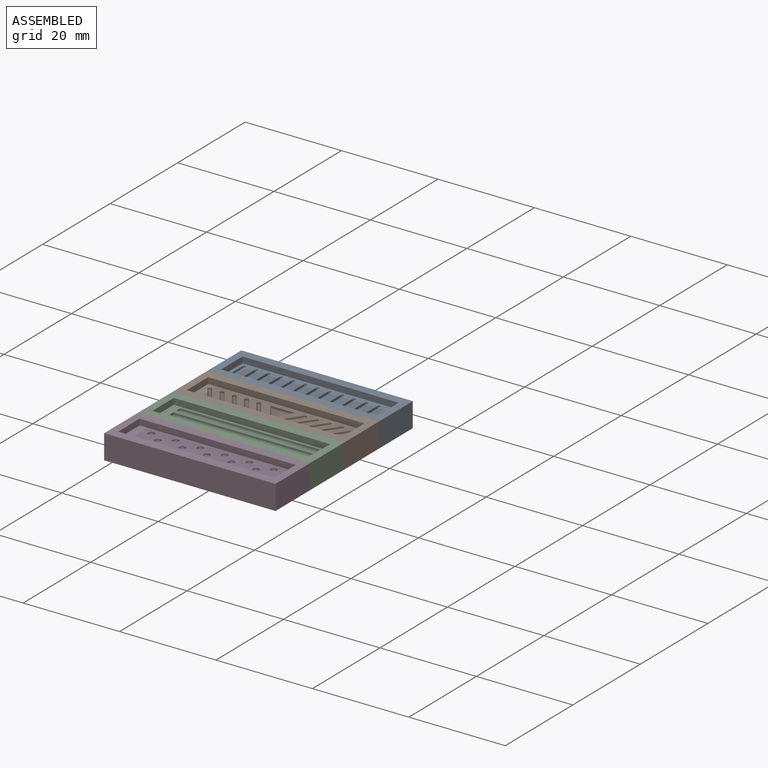
[diagram: assembled view]
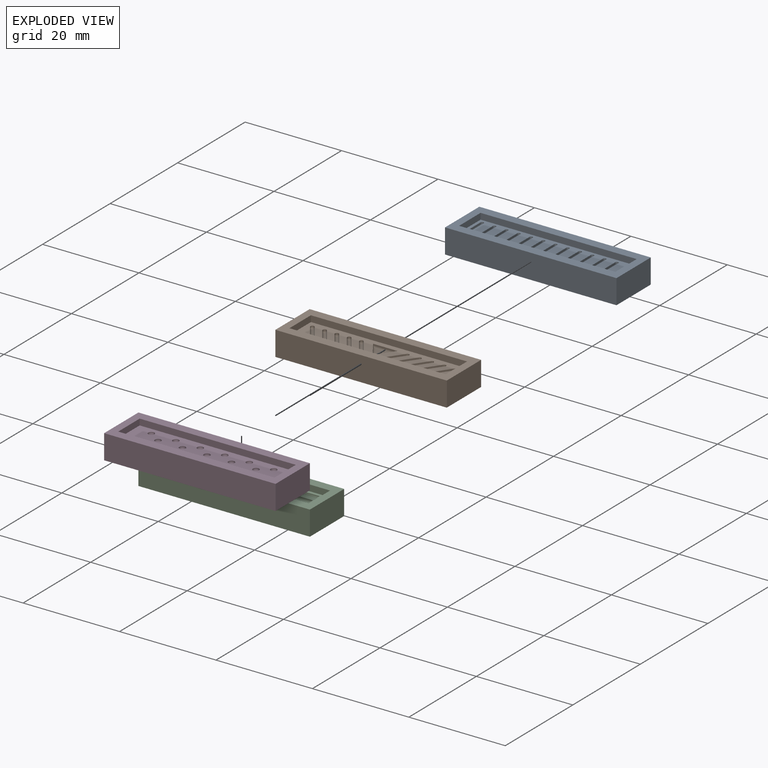
[diagram: exploded view]
GUIDED TOUR — MATED ASSEMBLY (Onshape document 4ad4c3a37b00c5f7597a4498, AutoMate assembly 4ad4c3a37b00c5f7597a4498_572ee04498159e4166e384d1_c1657ed071d5300d2320e906_default)

This assembly has 4 components, labeled P0..P3 below (a component is one placed occurrence of a part; the same part can appear more than once), held together by 9 mates. A mate is a constraint between two components; its type names the relative motion it leaves free:
  PLANAR — leaves sliding in the plane through the listed point (normal = the listed direction) and rotation about that normal free.
Axis/direction vectors are unit vectors and 'through' points are millimeter coordinates, both in the assembly's world frame.

MATES
  1. PLANAR "Planar 5": P2 <-> P1, direction (0.000, 0.000, -1.000) through (-12.15, -6.59, 8.30) mm
  2. PLANAR "Planar 7": P0 <-> P1, direction (0.000, -1.000, 0.000) through (-12.15, 8.65, 10.84) mm
  3. PLANAR "Planar 8": P0 <-> P1, direction (1.000, 0.000, 0.000) through (5.63, 13.73, 10.84) mm
  4. PLANAR "Planar 4": P2 <-> P1, direction (1.000, 0.000, 0.000) through (5.63, -6.59, 10.84) mm
  5. PLANAR "Planar 3": P3 <-> P2, direction (1.000, 0.000, 0.000) through (5.63, -16.75, 10.84) mm
  6. PLANAR "Planar 1": P1 <-> P2, direction (0.000, -1.000, 0.000) through (-12.15, -1.51, 10.84) mm
  7. PLANAR "Planar 6": P2 <-> P3, direction (0.000, 0.000, -1.000) through (-12.15, -6.59, 8.30) mm
  8. PLANAR "Planar 9": P0 <-> P1, direction (0.000, 0.000, -1.000) through (-12.15, 13.73, 8.30) mm
  9. PLANAR "Planar 2": P3 <-> P2, direction (0.000, 1.000, 0.000) through (5.63, -11.67, 13.38) mm

ASSEMBLY ORDER
  1. P3 — the base component [order verified]
  2. P2 [order verified]
  3. P1 [order verified]
  4. P0 [order verified]
Order-tag legend:
  [order verified] — this step's position reverses a verified removal order: the component was checked to insert without passing through the ones already placed.

Of the 4 components, 4 carry the full construction recipe — the FeatureScript program that regenerates the part's solid from scratch; the rest are supplied as boundary geometry only.
Each toured component is shown spotlighted twice — in the assembled view, then in the exploded view, where a leader line traces a displaced component back to its assembled socket (saturated green if recipe-attached, orange if geometry-only; every other component desaturated gray) — followed by its recipe or geometry summary and the mates that hold it.
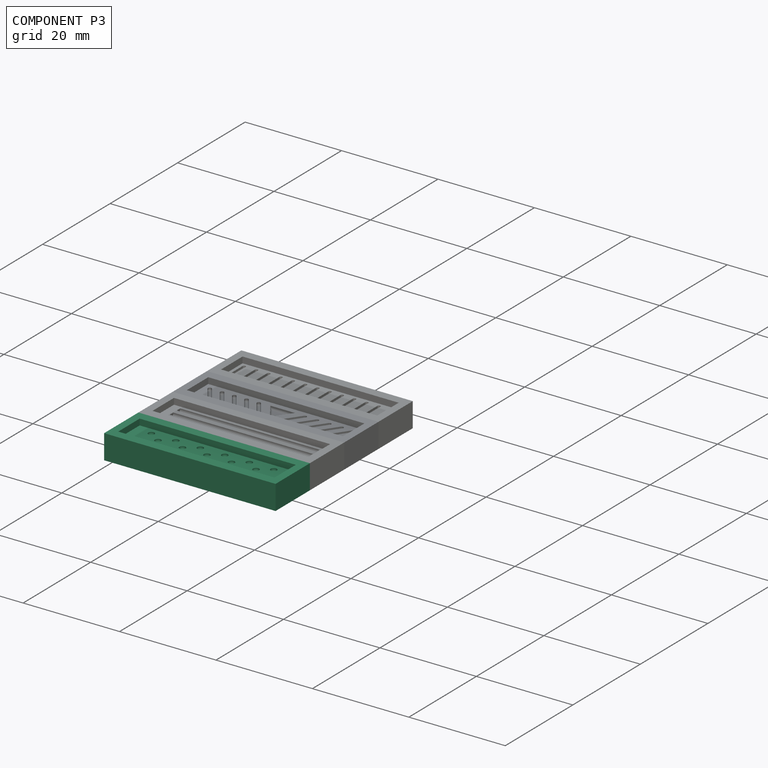
[diagram: component P3 — assembled]
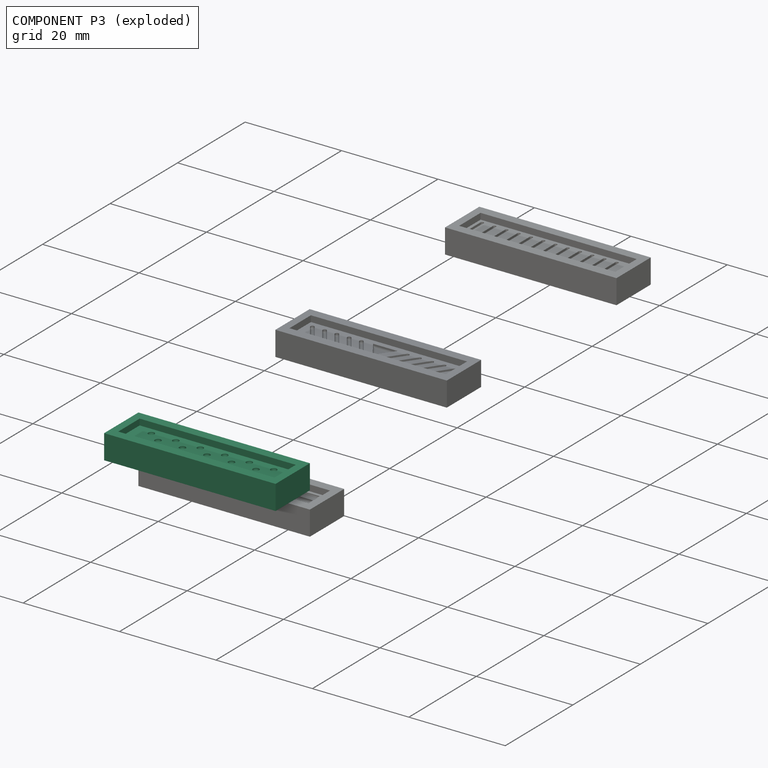
[diagram: component P3 — exploded]
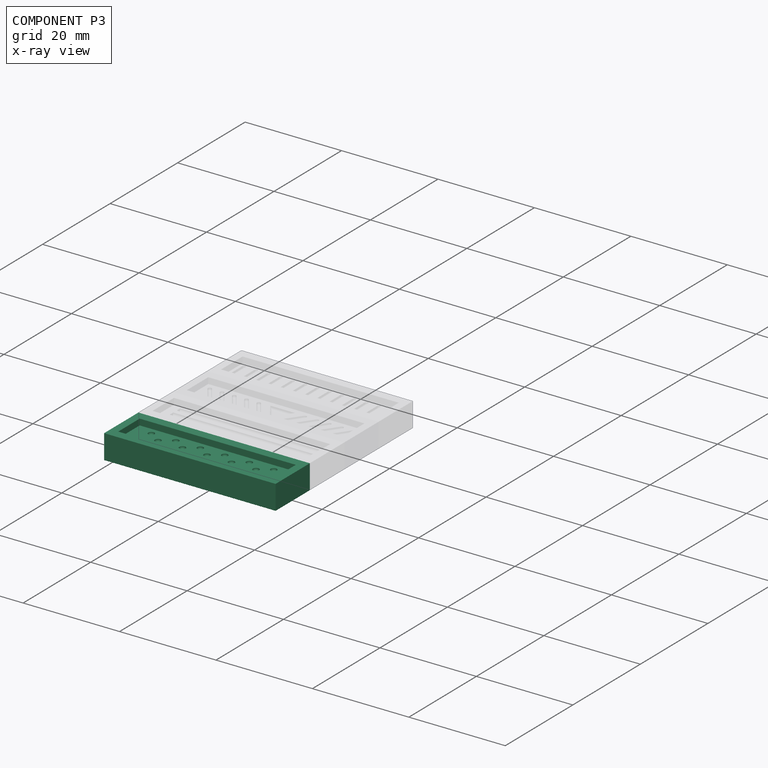
[diagram: component P3 — x-ray view]
COMPONENT P3 — recipe-attached (CADFS 00238306, mesh-verified: the recipe's output STEP matches this component's geometry to below the mesh-comparison resolution (tessellation chordal tolerance ~0.056 mm)).
Held by: PLANAR mate "Planar 3" to P2; PLANAR mate "Planar 6" to P2; PLANAR mate "Planar 2" to P2.
Construction recipe (FeatureScript — the CAD program that rebuilds this solid; sketch coordinates are in the units given by the * unit suffixes, e.g. mm):

FeatureScript 1511;
import(path : "onshape/std/geometry.fs", version : "1511.0");
import(path : "onshape/std/common.fs", version : "1511.0");
const mm = millimeter;
const VERTEX = EntityType.VERTEX;
const EDGE = EntityType.EDGE;
const FACE = EntityType.FACE;
const BODY = EntityType.BODY;
function v(x, y){return vector(x, y);}
function OD(order){return orderDisambiguation(order);}
function OSD(set){return originalSetDisambiguation(set);}
function TD(topology){return topologyDisambiguation(topology);}
function TDD(query){return trueDependencyDisambiguation(query);}
function sQuery(a, b, c) {return sketchEntityQuery(a, b, c);}

annotation { "Feature Type Name" : "Feature", "Feature Type Description" : "" }
export const myFeature = defineFeature(function(context is Context, id is Id, definition is map)
    precondition{}
    {
        {
            var Q0;
            Q0=qCreatedBy(makeId("Top.planeOp"),FACE);
            var sketch = newSketch(context, id + "F0", { "sketchPlane" : qUnion([Q0])});
            skLineSegment(sketch, "E0.bottom", {"start": v(17.78, -5.08) * mm, "end": v(-17.78, -5.08) * mm});
            skLineSegment(sketch, "E0.top", {"start": v(17.78, 5.08) * mm, "end": v(-17.78, 5.08) * mm});
            skLineSegment(sketch, "E0.left", {"start": v(17.78, -5.08) * mm, "end": v(17.78, 5.08) * mm});
            skLineSegment(sketch, "E0.right", {"start": v(-17.78, -5.08) * mm, "end": v(-17.78, 5.08) * mm});
            skPoint(sketch, "E0.middle", {"position": v(0, 0) * mm});
            skSolve(sketch);
        }
        {
            var Q0;
            Q0=makeQuery(id+"F0.imprint","IMPRINT",FACE,{"disambiguationData":[TD([[makeQuery(id+"F0.imprint","IMPRINT",EDGE,{"derivedFrom":sQuery(id+"F0.wireOp",EDGE,"E0.bottom")}),-1.0]])]});
            extrude(context, id + "F1", {"entities" : qUnion([Q0]), "depth" : 5.08 * mm});
        }
        {
            var Q0;
            Q0=makeQuery(id+"F1.opExtrude","CAP_FACE",FACE,{"disambiguationData":[OSD([sQuery(id+"F0.wireOp",EDGE,"E0.bottom"),sQuery(id+"F0.wireOp",EDGE,"E0.top"),sQuery(id+"F0.wireOp",EDGE,"E0.left"),sQuery(id+"F0.wireOp",EDGE,"E0.right")])],"isStart":false});
            var sketch = newSketch(context, id + "F2", { "sketchPlane" : qUnion([Q0])});
            skLineSegment(sketch, "E1.bottom", {"start": v(16.2, -3.18) * mm, "end": v(-16.2, -3.18) * mm});
            skLineSegment(sketch, "E1.top", {"start": v(16.2, 3.18) * mm, "end": v(-16.2, 3.18) * mm});
            skLineSegment(sketch, "E1.left", {"start": v(16.2, -3.18) * mm, "end": v(16.2, 3.17) * mm});
            skLineSegment(sketch, "E1.right", {"start": v(-16.2, -3.18) * mm, "end": v(-16.2, 3.17) * mm});
            skPoint(sketch, "E1.middle", {"position": v(0, 0) * mm});
            skSolve(sketch);
        }
        {
            var Q0;
            Q0 = qSketchRegion(id + "F2", true);
            extrude(context, id + "F3", {"entities" : qUnion([Q0]), "operationType" : NewBodyOperationType.REMOVE, "oppositeDirection" : true, "depth" : 1.27 * mm});
        }
        {
            var Q0;
            Q0=makeQuery(id+"F3.boolean.opBoolean","COPY",FACE,{"derivedFrom":makeQuery(id+"F3.opExtrude","CAP_FACE",FACE,{"disambiguationData":[OSD([sQuery(id+"F2.wireOp",EDGE,"E1.bottom"),sQuery(id+"F2.wireOp",EDGE,"E1.top"),sQuery(id+"F2.wireOp",EDGE,"E1.left"),sQuery(id+"F2.wireOp",EDGE,"E1.right")])],"isStart":false})});
            var sketch = newSketch(context, id + "F4", { "sketchPlane" : qUnion([Q0])});
            skCircle(sketch, "E2", {"center": v(-12.7, 1.65) * mm, "radius": 0.64 * mm});
            skCircle(sketch, "E3", {"center": v(-10.16, 0) * mm, "radius": 0.64 * mm});
            skCircle(sketch, "E4.1.0.0", {"center": v(-7.62, 1.65) * mm, "radius": 0.64 * mm});
            skCircle(sketch, "E4.2.0.0", {"center": v(-2.54, 1.65) * mm, "radius": 0.64 * mm});
            skCircle(sketch, "E4.3.0.0", {"center": v(2.54, 1.65) * mm, "radius": 0.64 * mm});
            skCircle(sketch, "E4.4.0.0", {"center": v(7.62, 1.65) * mm, "radius": 0.64 * mm});
            skCircle(sketch, "E4.5.0.0", {"center": v(12.7, 1.65) * mm, "radius": 0.64 * mm});
            skLineSegment(sketch, "E4.direction1", {"start": v(-12.7, 1.65) * mm, "end": v(-7.62, 1.65) * mm, "construction": true});
            skLineSegment(sketch, "E5", {"start": v(-2.54, 1.65) * mm, "end": v(2.54, 1.65) * mm, "construction": true});
            skPoint(sketch, "E6", {"position": v(0, 1.65) * mm});
            skCircle(sketch, "E7.1.0.0", {"center": v(-5.08, 0) * mm, "radius": 0.64 * mm});
            skCircle(sketch, "E7.2.0.0", {"center": v(0, 0) * mm, "radius": 0.64 * mm});
            skCircle(sketch, "E7.3.0.0", {"center": v(5.08, 0) * mm, "radius": 0.64 * mm});
            skCircle(sketch, "E7.4.0.0", {"center": v(10.16, 0) * mm, "radius": 0.64 * mm});
            skLineSegment(sketch, "E7.direction1", {"start": v(-10.16, 0) * mm, "end": v(-5.08, 0) * mm, "construction": true});
            skCircle(sketch, "E8.MirrorC", {"center": v(-12.7, -1.65) * mm, "radius": 0.64 * mm});
            skCircle(sketch, "E9.MirrorC", {"center": v(-7.62, -1.65) * mm, "radius": 0.64 * mm});
            skCircle(sketch, "E10.MirrorC", {"center": v(-2.54, -1.65) * mm, "radius": 0.64 * mm});
            skCircle(sketch, "E11.MirrorC", {"center": v(2.54, -1.65) * mm, "radius": 0.64 * mm});
            skCircle(sketch, "E12.MirrorC", {"center": v(7.62, -1.65) * mm, "radius": 0.64 * mm});
            skCircle(sketch, "E13.MirrorC", {"center": v(12.7, -1.65) * mm, "radius": 0.64 * mm});
            skSolve(sketch);
        }
        {
            var Q0;
            Q0 = qSketchRegion(id + "F4", true);
            extrude(context, id + "F5", {"entities" : qUnion([Q0]), "operationType" : NewBodyOperationType.REMOVE, "oppositeDirection" : true, "depth" : 0.64 * mm});
        }
        {
            var Q0;
            Q0=makeQuery(id+"F5.boolean.opBoolean","COPY",EDGE,{"derivedFrom":makeQuery(id+"F5.opExtrude","CAP_EDGE",EDGE,{"disambiguationData":[OSD([sQuery(id+"F4.wireOp",EDGE,"E2")])],"isStart":false})});
            var Q1;
            Q1=makeQuery(id+"F5.boolean.opBoolean","COPY",EDGE,{"derivedFrom":makeQuery(id+"F5.opExtrude","CAP_EDGE",EDGE,{"disambiguationData":[OSD([sQuery(id+"F4.wireOp",EDGE,"E8.MirrorC")])],"isStart":false})});
            var Q2;
            Q2=makeQuery(id+"F5.boolean.opBoolean","COPY",EDGE,{"derivedFrom":makeQuery(id+"F5.opExtrude","CAP_EDGE",EDGE,{"disambiguationData":[OSD([sQuery(id+"F4.wireOp",EDGE,"E3")])],"isStart":false})});
            var Q3;
            Q3=makeQuery(id+"F5.boolean.opBoolean","COPY",EDGE,{"derivedFrom":makeQuery(id+"F5.opExtrude","CAP_EDGE",EDGE,{"disambiguationData":[OSD([sQuery(id+"F4.wireOp",EDGE,"E4.1.0.0")])],"isStart":false})});
            var Q4;
            Q4=makeQuery(id+"F5.boolean.opBoolean","COPY",EDGE,{"derivedFrom":makeQuery(id+"F5.opExtrude","CAP_EDGE",EDGE,{"disambiguationData":[OSD([sQuery(id+"F4.wireOp",EDGE,"E7.1.0.0")])],"isStart":false})});
            var Q5;
            Q5=makeQuery(id+"F5.boolean.opBoolean","COPY",EDGE,{"derivedFrom":makeQuery(id+"F5.opExtrude","CAP_EDGE",EDGE,{"disambiguationData":[OSD([sQuery(id+"F4.wireOp",EDGE,"E4.2.0.0")])],"isStart":false})});
            var Q6;
            Q6=makeQuery(id+"F5.boolean.opBoolean","COPY",EDGE,{"derivedFrom":makeQuery(id+"F5.opExtrude","CAP_EDGE",EDGE,{"disambiguationData":[OSD([sQuery(id+"F4.wireOp",EDGE,"E10.MirrorC")])],"isStart":false})});
            var Q7;
            Q7=makeQuery(id+"F5.boolean.opBoolean","COPY",EDGE,{"derivedFrom":makeQuery(id+"F5.opExtrude","CAP_EDGE",EDGE,{"disambiguationData":[OSD([sQuery(id+"F4.wireOp",EDGE,"E9.MirrorC")])],"isStart":false})});
            var Q8;
            Q8=makeQuery(id+"F5.boolean.opBoolean","COPY",EDGE,{"derivedFrom":makeQuery(id+"F5.opExtrude","CAP_EDGE",EDGE,{"disambiguationData":[OSD([sQuery(id+"F4.wireOp",EDGE,"E7.2.0.0")])],"isStart":false})});
            var Q9;
            Q9=makeQuery(id+"F5.boolean.opBoolean","COPY",EDGE,{"derivedFrom":makeQuery(id+"F5.opExtrude","CAP_EDGE",EDGE,{"disambiguationData":[OSD([sQuery(id+"F4.wireOp",EDGE,"E4.3.0.0")])],"isStart":false})});
            var Q10;
            Q10=makeQuery(id+"F5.boolean.opBoolean","COPY",EDGE,{"derivedFrom":makeQuery(id+"F5.opExtrude","CAP_EDGE",EDGE,{"disambiguationData":[OSD([sQuery(id+"F4.wireOp",EDGE,"E11.MirrorC")])],"isStart":false})});
            var Q11;
            Q11=makeQuery(id+"F5.boolean.opBoolean","COPY",EDGE,{"derivedFrom":makeQuery(id+"F5.opExtrude","CAP_EDGE",EDGE,{"disambiguationData":[OSD([sQuery(id+"F4.wireOp",EDGE,"E7.3.0.0")])],"isStart":false})});
            var Q12;
            Q12=makeQuery(id+"F5.boolean.opBoolean","COPY",EDGE,{"derivedFrom":makeQuery(id+"F5.opExtrude","CAP_EDGE",EDGE,{"disambiguationData":[OSD([sQuery(id+"F4.wireOp",EDGE,"E12.MirrorC")])],"isStart":false})});
            var Q13;
            Q13=makeQuery(id+"F5.boolean.opBoolean","COPY",EDGE,{"derivedFrom":makeQuery(id+"F5.opExtrude","CAP_EDGE",EDGE,{"disambiguationData":[OSD([sQuery(id+"F4.wireOp",EDGE,"E4.4.0.0")])],"isStart":false})});
            var Q14;
            Q14=makeQuery(id+"F5.boolean.opBoolean","COPY",EDGE,{"derivedFrom":makeQuery(id+"F5.opExtrude","CAP_EDGE",EDGE,{"disambiguationData":[OSD([sQuery(id+"F4.wireOp",EDGE,"E7.4.0.0")])],"isStart":false})});
            var Q15;
            Q15=makeQuery(id+"F5.boolean.opBoolean","COPY",EDGE,{"derivedFrom":makeQuery(id+"F5.opExtrude","CAP_EDGE",EDGE,{"disambiguationData":[OSD([sQuery(id+"F4.wireOp",EDGE,"E4.5.0.0")])],"isStart":false})});
            var Q16;
            Q16=makeQuery(id+"F5.boolean.opBoolean","COPY",EDGE,{"derivedFrom":makeQuery(id+"F5.opExtrude","CAP_EDGE",EDGE,{"disambiguationData":[OSD([sQuery(id+"F4.wireOp",EDGE,"E13.MirrorC")])],"isStart":false})});
            fillet(context, id + "F6", {"entities" : qUnion([Q0, Q1, Q2, Q3, Q4, Q5, Q6, Q7, Q8, Q9, Q10, Q11, Q12, Q13, Q14, Q15, Q16]), "radius" : 0.5 * mm, "tangentPropagation" : true, "allowEdgeOverflow" : false});
        }
    });
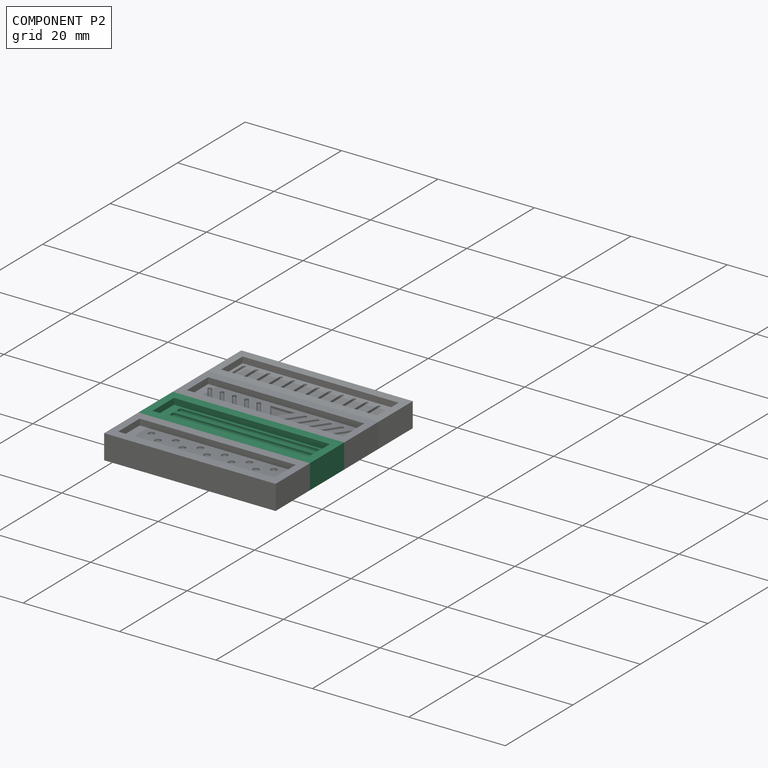
[diagram: component P2 — assembled]
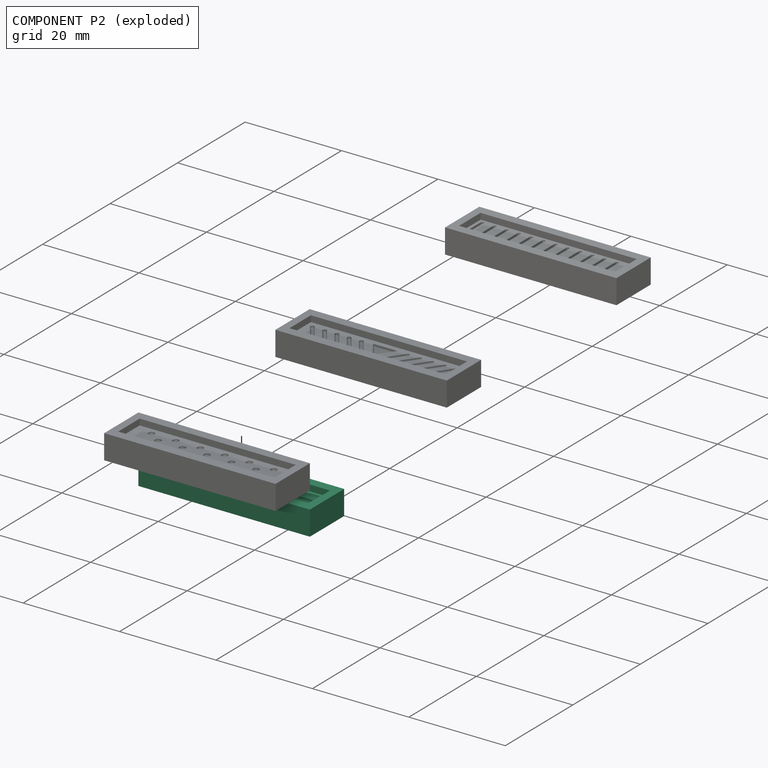
[diagram: component P2 — exploded]
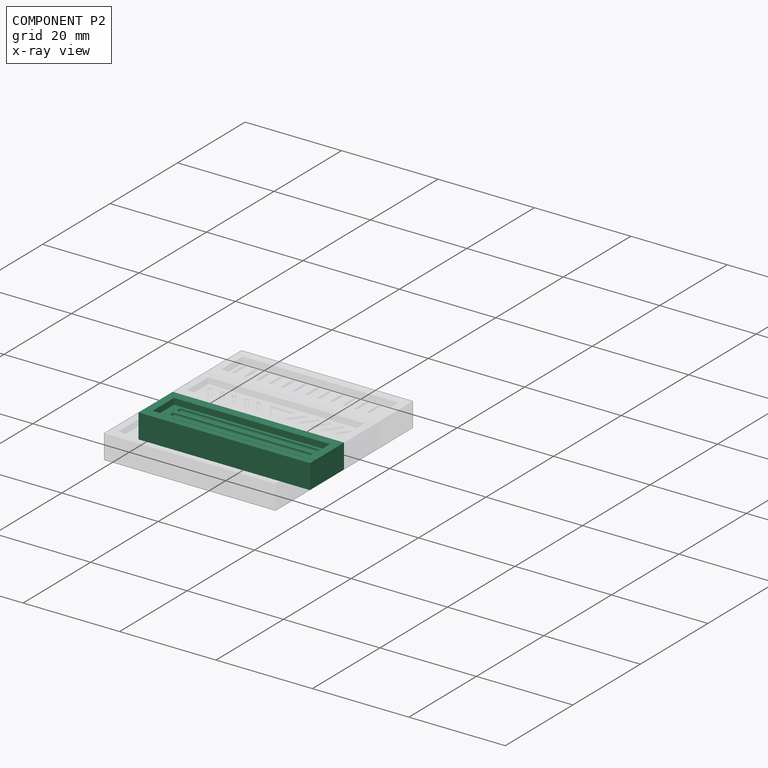
[diagram: component P2 — x-ray view]
COMPONENT P2 — recipe-attached (CADFS 00238307, mesh-verified: the recipe's output STEP matches this component's geometry to below the mesh-comparison resolution (tessellation chordal tolerance ~0.056 mm)).
Held by: PLANAR mate "Planar 5" to P1; PLANAR mate "Planar 4" to P1; PLANAR mate "Planar 3" to P3; PLANAR mate "Planar 1" to P1; PLANAR mate "Planar 6" to P3; PLANAR mate "Planar 2" to P3.
Construction recipe (FeatureScript — the CAD program that rebuilds this solid; sketch coordinates are in the units given by the * unit suffixes, e.g. mm):

FeatureScript 1511;
import(path : "onshape/std/geometry.fs", version : "1511.0");
import(path : "onshape/std/common.fs", version : "1511.0");
const mm = millimeter;
const VERTEX = EntityType.VERTEX;
const EDGE = EntityType.EDGE;
const FACE = EntityType.FACE;
const BODY = EntityType.BODY;
function v(x, y){return vector(x, y);}
function OD(order){return orderDisambiguation(order);}
function OSD(set){return originalSetDisambiguation(set);}
function TD(topology){return topologyDisambiguation(topology);}
function TDD(query){return trueDependencyDisambiguation(query);}
function sQuery(a, b, c) {return sketchEntityQuery(a, b, c);}

annotation { "Feature Type Name" : "Feature", "Feature Type Description" : "" }
export const myFeature = defineFeature(function(context is Context, id is Id, definition is map)
    precondition{}
    {
        {
            var Q0;
            Q0=qCreatedBy(makeId("Top.planeOp"),FACE);
            var sketch = newSketch(context, id + "F0", { "sketchPlane" : qUnion([Q0])});
            skLineSegment(sketch, "E0.bottom", {"start": v(17.78, -5.08) * mm, "end": v(-17.78, -5.08) * mm});
            skLineSegment(sketch, "E0.top", {"start": v(17.78, 5.08) * mm, "end": v(-17.78, 5.08) * mm});
            skLineSegment(sketch, "E0.left", {"start": v(17.78, -5.08) * mm, "end": v(17.78, 5.08) * mm});
            skLineSegment(sketch, "E0.right", {"start": v(-17.78, -5.08) * mm, "end": v(-17.78, 5.08) * mm});
            skPoint(sketch, "E0.middle", {"position": v(0, 0) * mm});
            skSolve(sketch);
        }
        {
            var Q0;
            Q0=makeQuery(id+"F0.imprint","IMPRINT",FACE,{"disambiguationData":[TD([[makeQuery(id+"F0.imprint","IMPRINT",EDGE,{"derivedFrom":sQuery(id+"F0.wireOp",EDGE,"E0.bottom")}),-1.0]])]});
            extrude(context, id + "F1", {"entities" : qUnion([Q0]), "depth" : 5.08 * mm});
        }
        {
            var Q0;
            Q0=makeQuery(id+"F1.opExtrude","CAP_FACE",FACE,{"disambiguationData":[OSD([sQuery(id+"F0.wireOp",EDGE,"E0.bottom"),sQuery(id+"F0.wireOp",EDGE,"E0.top"),sQuery(id+"F0.wireOp",EDGE,"E0.left"),sQuery(id+"F0.wireOp",EDGE,"E0.right")])],"isStart":false});
            var sketch = newSketch(context, id + "F2", { "sketchPlane" : qUnion([Q0])});
            skLineSegment(sketch, "E1.bottom", {"start": v(16.2, -3.18) * mm, "end": v(-16.2, -3.18) * mm});
            skLineSegment(sketch, "E1.top", {"start": v(16.2, 3.18) * mm, "end": v(-16.2, 3.18) * mm});
            skLineSegment(sketch, "E1.left", {"start": v(16.2, -3.18) * mm, "end": v(16.2, 3.17) * mm});
            skLineSegment(sketch, "E1.right", {"start": v(-16.2, -3.18) * mm, "end": v(-16.2, 3.17) * mm});
            skPoint(sketch, "E1.middle", {"position": v(0, 0) * mm});
            skSolve(sketch);
        }
        {
            var Q0;
            Q0=qSketchRegion(id+"F2",true);
            extrude(context, id + "F3", {"entities" : qUnion([Q0]), "operationType" : NewBodyOperationType.REMOVE, "oppositeDirection" : true, "depth" : 1.27 * mm});
        }
        {
            var Q0;
            Q0=makeQuery(id+"F3.boolean.opBoolean","COPY",FACE,{"derivedFrom":makeQuery(id+"F3.opExtrude","CAP_FACE",FACE,{"disambiguationData":[OSD([sQuery(id+"F2.wireOp",EDGE,"E1.bottom"),sQuery(id+"F2.wireOp",EDGE,"E1.top"),sQuery(id+"F2.wireOp",EDGE,"E1.left"),sQuery(id+"F2.wireOp",EDGE,"E1.right")])],"isStart":false})});
            var sketch = newSketch(context, id + "F4", { "sketchPlane" : qUnion([Q0])});
            skLineSegment(sketch, "E2.bottom", {"start": v(14.48, -0.5) * mm, "end": v(-14.48, -0.5) * mm});
            skLineSegment(sketch, "E2.top", {"start": v(14.48, 0.5) * mm, "end": v(-14.48, 0.5) * mm});
            skLineSegment(sketch, "E2.left", {"start": v(14.48, -0.5) * mm, "end": v(14.48, 0.5) * mm});
            skLineSegment(sketch, "E2.right", {"start": v(-14.48, -0.5) * mm, "end": v(-14.48, 0.5) * mm});
            skPoint(sketch, "E2.middle", {"position": v(0, 0) * mm});
            skLineSegment(sketch, "E3.0.1.0", {"start": v(14.48, 2.54) * mm, "end": v(-14.48, 2.54) * mm});
            skLineSegment(sketch, "E3.0.1.1", {"start": v(14.48, 1.52) * mm, "end": v(-14.48, 1.52) * mm});
            skLineSegment(sketch, "E3.0.1.2", {"start": v(-14.48, 1.52) * mm, "end": v(-14.48, 2.54) * mm});
            skLineSegment(sketch, "E3.0.1.3", {"start": v(14.48, 1.52) * mm, "end": v(14.48, 2.54) * mm});
            skLineSegment(sketch, "E3.direction1", {"start": v(-14.48, 0.5) * mm, "end": v(10.92, 0.5) * mm, "construction": true});
            skLineSegment(sketch, "E3.direction2", {"start": v(-14.48, 0.5) * mm, "end": v(-14.48, 2.54) * mm, "construction": true});
            skLineSegment(sketch, "E4.0.1.0", {"start": v(14.48, -2.29) * mm, "end": v(-14.48, -2.29) * mm});
            skLineSegment(sketch, "E4.0.1.1", {"start": v(-14.48, -2.29) * mm, "end": v(-14.48, -1.27) * mm});
            skLineSegment(sketch, "E4.0.1.2", {"start": v(14.48, -1.27) * mm, "end": v(-14.48, -1.27) * mm});
            skLineSegment(sketch, "E4.0.1.3", {"start": v(14.48, -2.29) * mm, "end": v(14.48, -1.27) * mm});
            skLineSegment(sketch, "E4.direction1", {"start": v(-14.48, -0.5) * mm, "end": v(10.92, -0.5) * mm, "construction": true});
            skLineSegment(sketch, "E4.direction2", {"start": v(-14.48, -0.5) * mm, "end": v(-14.48, -2.29) * mm, "construction": true});
            skSolve(sketch);
        }
        {
            var Q0;
            Q0 = qSketchRegion(id + "F4", true);
            extrude(context, id + "F5", {"entities" : qUnion([Q0]), "operationType" : NewBodyOperationType.REMOVE, "oppositeDirection" : true, "depth" : 0.64 * mm});
        }
        {
            var Q0;
            Q0=makeQuery(id+"F5.boolean.opBoolean","COPY",EDGE,{"derivedFrom":makeQuery(id+"F5.opExtrude","CAP_EDGE",EDGE,{"disambiguationData":[OSD([sQuery(id+"F4.wireOp",EDGE,"E2.top")])],"isStart":false})});
            var Q1;
            Q1=makeQuery(id+"F5.boolean.opBoolean","COPY",EDGE,{"derivedFrom":makeQuery(id+"F5.opExtrude","CAP_EDGE",EDGE,{"disambiguationData":[OSD([sQuery(id+"F4.wireOp",EDGE,"E2.bottom")])],"isStart":false})});
            var Q2;
            Q2=makeQuery(id+"F5.boolean.opBoolean","COPY",EDGE,{"derivedFrom":makeQuery(id+"F5.opExtrude","CAP_EDGE",EDGE,{"disambiguationData":[OSD([sQuery(id+"F4.wireOp",EDGE,"E3.0.1.0")])],"isStart":false})});
            var Q3;
            Q3=makeQuery(id+"F5.boolean.opBoolean","COPY",EDGE,{"derivedFrom":makeQuery(id+"F5.opExtrude","CAP_EDGE",EDGE,{"disambiguationData":[OSD([sQuery(id+"F4.wireOp",EDGE,"E4.0.1.2")])],"isStart":false})});
            var Q4;
            Q4=makeQuery(id+"F5.boolean.opBoolean","COPY",EDGE,{"derivedFrom":makeQuery(id+"F5.opExtrude","CAP_EDGE",EDGE,{"disambiguationData":[OSD([sQuery(id+"F4.wireOp",EDGE,"E3.0.1.1")])],"isStart":false})});
            var Q5;
            Q5=makeQuery(id+"F5.boolean.opBoolean","COPY",EDGE,{"derivedFrom":makeQuery(id+"F5.opExtrude","CAP_EDGE",EDGE,{"disambiguationData":[OSD([sQuery(id+"F4.wireOp",EDGE,"E4.0.1.0")])],"isStart":false})});
            fillet(context, id + "F6", {"entities" : qUnion([Q0, Q1, Q2, Q3, Q4, Q5]), "radius" : 0.5 * mm, "tangentPropagation" : true, "allowEdgeOverflow" : false});
        }
    });
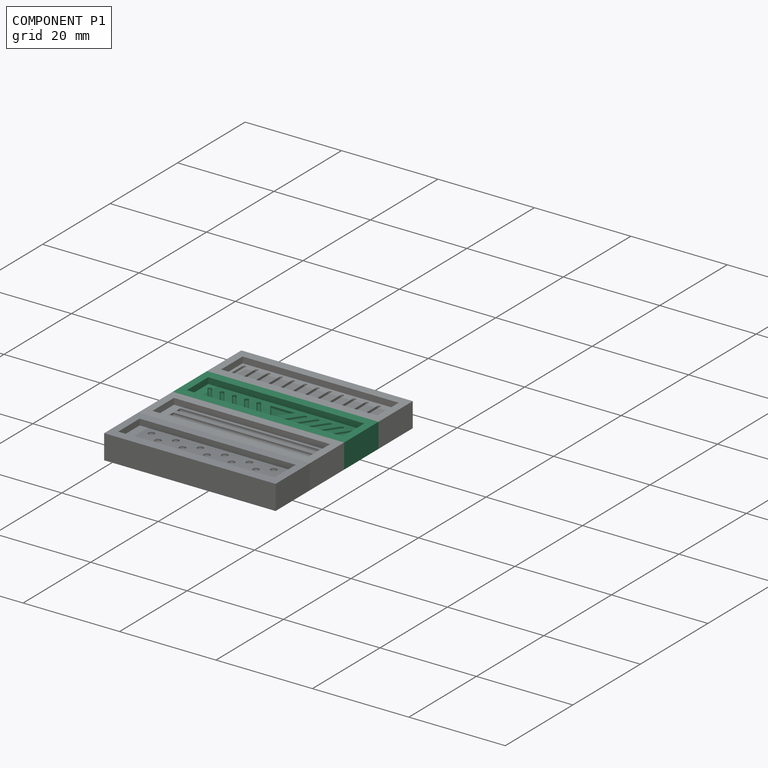
[diagram: component P1 — assembled]
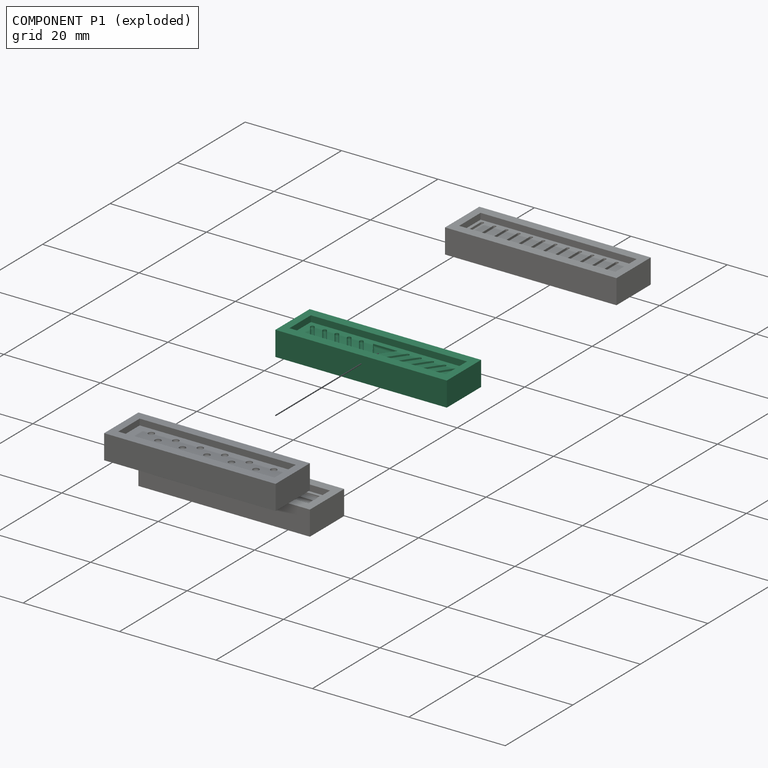
[diagram: component P1 — exploded]
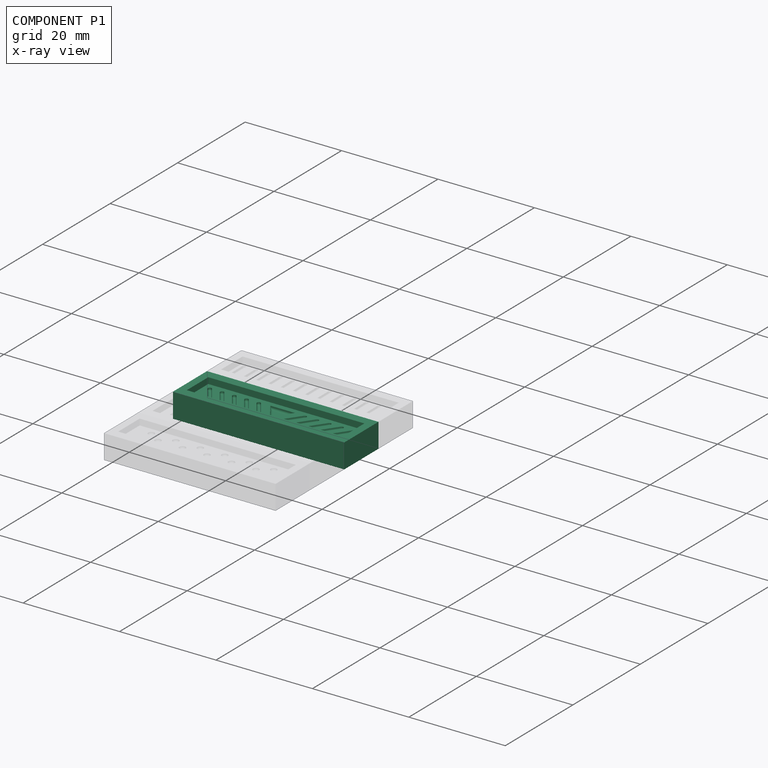
[diagram: component P1 — x-ray view]
COMPONENT P1 — recipe-attached (CADFS 00238309, mesh-verified: the recipe's output STEP matches this component's geometry to below the mesh-comparison resolution (tessellation chordal tolerance ~0.056 mm)).
Held by: PLANAR mate "Planar 5" to P2; PLANAR mate "Planar 7" to P0; PLANAR mate "Planar 8" to P0; PLANAR mate "Planar 4" to P2; PLANAR mate "Planar 1" to P2; PLANAR mate "Planar 9" to P0.
Construction recipe (FeatureScript — the CAD program that rebuilds this solid; sketch coordinates are in the units given by the * unit suffixes, e.g. mm):

FeatureScript 1511;
import(path : "onshape/std/geometry.fs", version : "1511.0");
import(path : "onshape/std/common.fs", version : "1511.0");
const mm = millimeter;
const VERTEX = EntityType.VERTEX;
const EDGE = EntityType.EDGE;
const FACE = EntityType.FACE;
const BODY = EntityType.BODY;
function v(x, y){return vector(x, y);}
function OD(order){return orderDisambiguation(order);}
function OSD(set){return originalSetDisambiguation(set);}
function TD(topology){return topologyDisambiguation(topology);}
function TDD(query){return trueDependencyDisambiguation(query);}
function sQuery(a, b, c) {return sketchEntityQuery(a, b, c);}

annotation { "Feature Type Name" : "Feature", "Feature Type Description" : "" }
export const myFeature = defineFeature(function(context is Context, id is Id, definition is map)
    precondition{}
    {
        {
            var Q0;
            Q0=qCreatedBy(makeId("Top.planeOp"),FACE);
            var sketch = newSketch(context, id + "F0", { "sketchPlane" : qUnion([Q0])});
            skLineSegment(sketch, "E0.bottom", {"start": v(17.78, -5.08) * mm, "end": v(-17.78, -5.08) * mm});
            skLineSegment(sketch, "E0.top", {"start": v(17.78, 5.08) * mm, "end": v(-17.78, 5.08) * mm});
            skLineSegment(sketch, "E0.left", {"start": v(17.78, -5.08) * mm, "end": v(17.78, 5.08) * mm});
            skLineSegment(sketch, "E0.right", {"start": v(-17.78, -5.08) * mm, "end": v(-17.78, 5.08) * mm});
            skPoint(sketch, "E0.middle", {"position": v(0, 0) * mm});
            skSolve(sketch);
        }
        {
            var Q0;
            Q0=makeQuery(id+"F0.imprint","IMPRINT",FACE,{"disambiguationData":[TD([[makeQuery(id+"F0.imprint","IMPRINT",EDGE,{"derivedFrom":sQuery(id+"F0.wireOp",EDGE,"E0.bottom")}),-1.0]])]});
            extrude(context, id + "F1", {"entities" : qUnion([Q0]), "depth" : 5.08 * mm});
        }
        {
            var Q0;
            Q0=makeQuery(id+"F1.opExtrude","CAP_FACE",FACE,{"disambiguationData":[OSD([sQuery(id+"F0.wireOp",EDGE,"E0.bottom"),sQuery(id+"F0.wireOp",EDGE,"E0.top"),sQuery(id+"F0.wireOp",EDGE,"E0.left"),sQuery(id+"F0.wireOp",EDGE,"E0.right")])],"isStart":false});
            var sketch = newSketch(context, id + "F2", { "sketchPlane" : qUnion([Q0])});
            skLineSegment(sketch, "E1.bottom", {"start": v(16.2, -3.18) * mm, "end": v(-16.2, -3.18) * mm});
            skLineSegment(sketch, "E1.top", {"start": v(16.2, 3.18) * mm, "end": v(-16.2, 3.18) * mm});
            skLineSegment(sketch, "E1.left", {"start": v(16.2, -3.18) * mm, "end": v(16.2, 3.17) * mm});
            skLineSegment(sketch, "E1.right", {"start": v(-16.2, -3.18) * mm, "end": v(-16.2, 3.17) * mm});
            skPoint(sketch, "E1.middle", {"position": v(0, 0) * mm});
            skSolve(sketch);
        }
        {
            var Q0;
            Q0=qSketchRegion(id+"F2",true);
            extrude(context, id + "F3", {"entities" : qUnion([Q0]), "operationType" : NewBodyOperationType.REMOVE, "oppositeDirection" : true, "depth" : 1.27 * mm});
        }
        {
            var Q0;
            Q0=makeQuery(id+"F3.boolean.opBoolean","COPY",FACE,{"derivedFrom":makeQuery(id+"F3.opExtrude","CAP_FACE",FACE,{"disambiguationData":[OSD([sQuery(id+"F2.wireOp",EDGE,"E1.bottom"),sQuery(id+"F2.wireOp",EDGE,"E1.top"),sQuery(id+"F2.wireOp",EDGE,"E1.left"),sQuery(id+"F2.wireOp",EDGE,"E1.right")])],"isStart":false})});
            var sketch = newSketch(context, id + "F4", { "sketchPlane" : qUnion([Q0])});
            skLineSegment(sketch, "E2", {"start": v(-14.93, 1.82) * mm, "end": v(-12.38, -1.82) * mm});
            skArc(sketch, "E3.0.startCap", {"start": v(-15.24, 1.6) * mm, "mid": v(-15.15, 2.13) * mm, "end": v(-14.62, 2.04) * mm});
            skArc(sketch, "E3.0.endCap", {"start": v(-12.07, -1.6) * mm, "mid": v(-12.16, -2.13) * mm, "end": v(-12.69, -2.04) * mm});
            skLineSegment(sketch, "E3.0.left", {"start": v(-14.62, 2.04) * mm, "end": v(-12.07, -1.6) * mm});
            skLineSegment(sketch, "E3.0.right", {"start": v(-15.24, 1.6) * mm, "end": v(-12.69, -2.04) * mm});
            skPoint(sketch, "E4", {"position": v(-13.65, 0) * mm});
            skLineSegment(sketch, "E5.1.0.0", {"start": v(-12.08, 2.04) * mm, "end": v(-9.53, -1.6) * mm});
            skArc(sketch, "E5.1.0.1", {"start": v(-12.7, 1.6) * mm, "mid": v(-12.6, 2.13) * mm, "end": v(-12.08, 2.04) * mm});
            skLineSegment(sketch, "E5.1.0.2", {"start": v(-12.7, 1.6) * mm, "end": v(-10.15, -2.04) * mm});
            skArc(sketch, "E5.1.0.3", {"start": v(-9.53, -1.6) * mm, "mid": v(-9.62, -2.13) * mm, "end": v(-10.15, -2.04) * mm});
            skLineSegment(sketch, "E5.2.0.0", {"start": v(-9.54, 2.04) * mm, "end": v(-6.99, -1.6) * mm});
            skArc(sketch, "E5.2.0.1", {"start": v(-10.16, 1.6) * mm, "mid": v(-10.07, 2.13) * mm, "end": v(-9.54, 2.04) * mm});
            skLineSegment(sketch, "E5.2.0.2", {"start": v(-10.16, 1.6) * mm, "end": v(-7.6, -2.04) * mm});
            skArc(sketch, "E5.2.0.3", {"start": v(-6.99, -1.6) * mm, "mid": v(-7.08, -2.13) * mm, "end": v(-7.6, -2.04) * mm});
            skLineSegment(sketch, "E5.3.0.0", {"start": v(-7, 2.04) * mm, "end": v(-4.45, -1.6) * mm});
            skArc(sketch, "E5.3.0.1", {"start": v(-7.62, 1.6) * mm, "mid": v(-7.53, 2.13) * mm, "end": v(-7, 2.04) * mm});
            skLineSegment(sketch, "E5.3.0.2", {"start": v(-7.62, 1.6) * mm, "end": v(-5.07, -2.04) * mm});
            skArc(sketch, "E5.3.0.3", {"start": v(-4.45, -1.6) * mm, "mid": v(-4.54, -2.13) * mm, "end": v(-5.07, -2.04) * mm});
            skLineSegment(sketch, "E5.4.0.0", {"start": v(-4.46, 2.04) * mm, "end": v(-1.9, -1.6) * mm});
            skArc(sketch, "E5.4.0.1", {"start": v(-5.08, 1.6) * mm, "mid": v(-4.99, 2.13) * mm, "end": v(-4.46, 2.04) * mm});
            skLineSegment(sketch, "E5.4.0.2", {"start": v(-5.08, 1.6) * mm, "end": v(-2.53, -2.04) * mm});
            skArc(sketch, "E5.4.0.3", {"start": v(-1.9, -1.6) * mm, "mid": v(-2, -2.13) * mm, "end": v(-2.53, -2.04) * mm});
            skLineSegment(sketch, "E5.direction1", {"start": v(-12.69, -2.04) * mm, "end": v(-10.15, -2.04) * mm, "construction": true});
            skLineSegment(sketch, "E6", {"start": v(0, 3.17) * mm, "end": v(0, -3.18) * mm, "construction": true});
            skLineSegment(sketch, "E7.MirrorCS", {"start": v(15.24, 1.6) * mm, "end": v(12.69, -2.04) * mm});
            skLineSegment(sketch, "E8.MirrorCS", {"start": v(14.62, 2.04) * mm, "end": v(12.07, -1.6) * mm});
            skArc(sketch, "E9.MirrorCS", {"start": v(15.24, 1.6) * mm, "mid": v(15.15, 2.13) * mm, "end": v(14.62, 2.04) * mm});
            skArc(sketch, "E10.MirrorCS", {"start": v(12.07, -1.6) * mm, "mid": v(12.16, -2.13) * mm, "end": v(12.69, -2.04) * mm});
            skLineSegment(sketch, "E11.MirrorCS", {"start": v(12.7, 1.6) * mm, "end": v(10.15, -2.04) * mm});
            skArc(sketch, "E12.MirrorCS", {"start": v(12.7, 1.6) * mm, "mid": v(12.6, 2.13) * mm, "end": v(12.08, 2.04) * mm});
            skLineSegment(sketch, "E13.MirrorCS", {"start": v(12.08, 2.04) * mm, "end": v(9.53, -1.6) * mm});
            skArc(sketch, "E14.MirrorCS", {"start": v(9.53, -1.6) * mm, "mid": v(9.62, -2.13) * mm, "end": v(10.15, -2.04) * mm});
            skArc(sketch, "E15.MirrorCS", {"start": v(6.99, -1.6) * mm, "mid": v(7.08, -2.13) * mm, "end": v(7.6, -2.04) * mm});
            skLineSegment(sketch, "E16.MirrorCS", {"start": v(10.16, 1.6) * mm, "end": v(7.6, -2.04) * mm});
            skLineSegment(sketch, "E17.MirrorCS", {"start": v(9.54, 2.04) * mm, "end": v(6.99, -1.6) * mm});
            skArc(sketch, "E18.MirrorCS", {"start": v(10.16, 1.6) * mm, "mid": v(10.07, 2.13) * mm, "end": v(9.54, 2.04) * mm});
            skArc(sketch, "E19.MirrorCS", {"start": v(7.62, 1.6) * mm, "mid": v(7.53, 2.13) * mm, "end": v(7, 2.04) * mm});
            skArc(sketch, "E20.MirrorCS", {"start": v(5.08, 1.6) * mm, "mid": v(4.99, 2.13) * mm, "end": v(4.46, 2.04) * mm});
            skLineSegment(sketch, "E21.MirrorCS", {"start": v(7.62, 1.6) * mm, "end": v(5.07, -2.04) * mm});
            skLineSegment(sketch, "E22.MirrorCS", {"start": v(7, 2.04) * mm, "end": v(4.45, -1.6) * mm});
            skLineSegment(sketch, "E23.MirrorCS", {"start": v(5.08, 1.6) * mm, "end": v(2.53, -2.04) * mm});
            skLineSegment(sketch, "E24.MirrorCS", {"start": v(4.46, 2.04) * mm, "end": v(1.9, -1.6) * mm});
            skArc(sketch, "E25.MirrorCS", {"start": v(4.45, -1.6) * mm, "mid": v(4.54, -2.13) * mm, "end": v(5.07, -2.04) * mm});
            skArc(sketch, "E26.MirrorCS", {"start": v(1.9, -1.6) * mm, "mid": v(2, -2.13) * mm, "end": v(2.53, -2.04) * mm});
            skLineSegment(sketch, "E27", {"start": v(0, -1.6) * mm, "end": v(-2.54, 2.1) * mm});
            skLineSegment(sketch, "E28", {"start": v(-2.54, 2.1) * mm, "end": v(0, 2.1) * mm});
            skLineSegment(sketch, "E29", {"start": v(0, 2.1) * mm, "end": v(0, -1.6) * mm});
            skLineSegment(sketch, "E30.MirrorCS", {"start": v(2.54, 2.1) * mm, "end": v(0, 2.1) * mm});
            skLineSegment(sketch, "E31.MirrorCS", {"start": v(0, -1.6) * mm, "end": v(2.54, 2.1) * mm});
            skSolve(sketch);
        }
        {
            var Q0;
            Q0 = qSketchRegion(id + "F4", true);
            extrude(context, id + "F5", {"entities" : qUnion([Q0]), "operationType" : NewBodyOperationType.REMOVE, "oppositeDirection" : true, "depth" : 0.64 * mm});
        }
        {
            var Q0;
            Q0=makeQuery(id+"F5.boolean.opBoolean","COPY",EDGE,{"derivedFrom":makeQuery(id+"F5.opExtrude","CAP_EDGE",EDGE,{"disambiguationData":[OSD([sQuery(id+"F4.wireOp",EDGE,"E5.1.0.0")])],"isStart":false})});
            var Q1;
            Q1=makeQuery(id+"F5.boolean.opBoolean","COPY",EDGE,{"derivedFrom":makeQuery(id+"F5.opExtrude","CAP_EDGE",EDGE,{"disambiguationData":[OSD([sQuery(id+"F4.wireOp",EDGE,"E3.0.right")])],"isStart":false})});
            var Q2;
            Q2=makeQuery(id+"F5.boolean.opBoolean","COPY",EDGE,{"derivedFrom":makeQuery(id+"F5.opExtrude","CAP_EDGE",EDGE,{"disambiguationData":[OSD([sQuery(id+"F4.wireOp",EDGE,"E5.2.0.2")])],"isStart":false})});
            var Q3;
            Q3=makeQuery(id+"F5.boolean.opBoolean","COPY",EDGE,{"derivedFrom":makeQuery(id+"F5.opExtrude","CAP_EDGE",EDGE,{"disambiguationData":[OSD([sQuery(id+"F4.wireOp",EDGE,"E5.3.0.2")])],"isStart":false})});
            var Q4;
            Q4=makeQuery(id+"F5.boolean.opBoolean","COPY",EDGE,{"derivedFrom":makeQuery(id+"F5.opExtrude","CAP_EDGE",EDGE,{"disambiguationData":[OSD([sQuery(id+"F4.wireOp",EDGE,"E5.4.0.2")])],"isStart":false})});
            var Q5;
            Q5=makeQuery(id+"F5.boolean.opBoolean","COPY",EDGE,{"derivedFrom":makeQuery(id+"F5.opExtrude","CAP_EDGE",EDGE,{"disambiguationData":[OSD([sQuery(id+"F4.wireOp",EDGE,"E24.MirrorCS")])],"isStart":false})});
            var Q6;
            Q6=makeQuery(id+"F5.boolean.opBoolean","COPY",EDGE,{"derivedFrom":makeQuery(id+"F5.opExtrude","CAP_EDGE",EDGE,{"disambiguationData":[OSD([sQuery(id+"F4.wireOp",EDGE,"E22.MirrorCS")])],"isStart":false})});
            var Q7;
            Q7=makeQuery(id+"F5.boolean.opBoolean","COPY",EDGE,{"derivedFrom":makeQuery(id+"F5.opExtrude","CAP_EDGE",EDGE,{"disambiguationData":[OSD([sQuery(id+"F4.wireOp",EDGE,"E17.MirrorCS")])],"isStart":false})});
            var Q8;
            Q8=makeQuery(id+"F5.boolean.opBoolean","COPY",EDGE,{"derivedFrom":makeQuery(id+"F5.opExtrude","CAP_EDGE",EDGE,{"disambiguationData":[OSD([sQuery(id+"F4.wireOp",EDGE,"E13.MirrorCS")])],"isStart":false})});
            var Q9;
            Q9=makeQuery(id+"F5.boolean.opBoolean","COPY",EDGE,{"derivedFrom":makeQuery(id+"F5.opExtrude","CAP_EDGE",EDGE,{"disambiguationData":[OSD([sQuery(id+"F4.wireOp",EDGE,"E8.MirrorCS")])],"isStart":false})});
            var Q10;
            Q10=makeQuery(id+"F5.boolean.opBoolean","COPY",EDGE,{"derivedFrom":makeQuery(id+"F5.opExtrude","CAP_EDGE",EDGE,{"disambiguationData":[OSD([sQuery(id+"F4.wireOp",EDGE,"E28"),sQuery(id+"F4.wireOp",EDGE,"E30.MirrorCS")])],"isStart":false})});
            var Q11;
            Q11=makeQuery(id+"F5.boolean.opBoolean","COPY",EDGE,{"derivedFrom":makeQuery(id+"F5.opExtrude","CAP_EDGE",EDGE,{"disambiguationData":[OSD([sQuery(id+"F4.wireOp",EDGE,"E27")])],"isStart":false})});
            var Q12;
            Q12=makeQuery(id+"F5.boolean.opBoolean","COPY",EDGE,{"derivedFrom":makeQuery(id+"F5.opExtrude","CAP_EDGE",EDGE,{"disambiguationData":[OSD([sQuery(id+"F4.wireOp",EDGE,"E31.MirrorCS")])],"isStart":false})});
            fillet(context, id + "F6", {"entities" : qUnion([Q0, Q1, Q2, Q3, Q4, Q5, Q6, Q7, Q8, Q9, Q10, Q11, Q12]), "radius" : 0.38 * mm, "tangentPropagation" : true, "allowEdgeOverflow" : false});
        }
    });
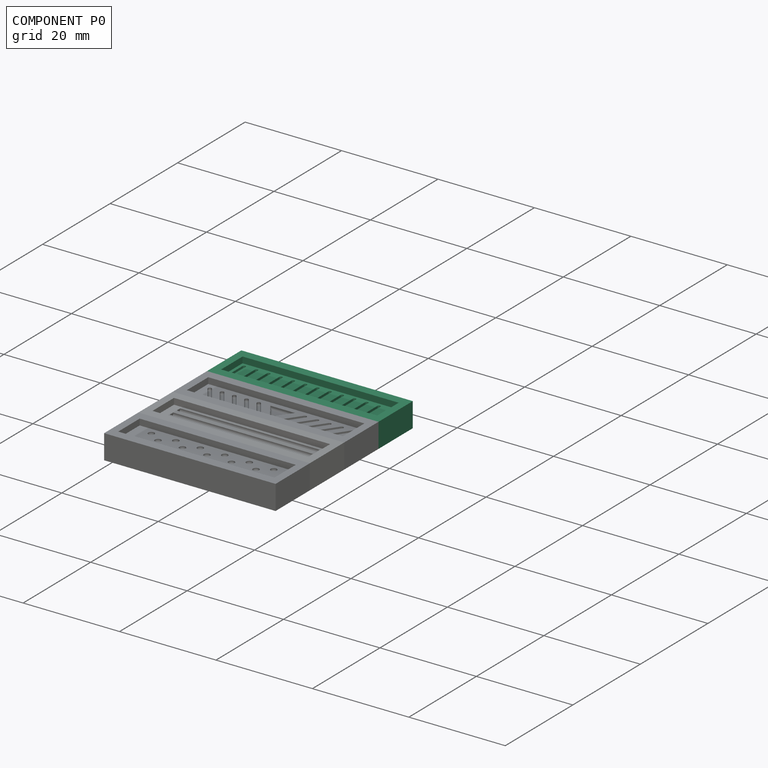
[diagram: component P0 — assembled]
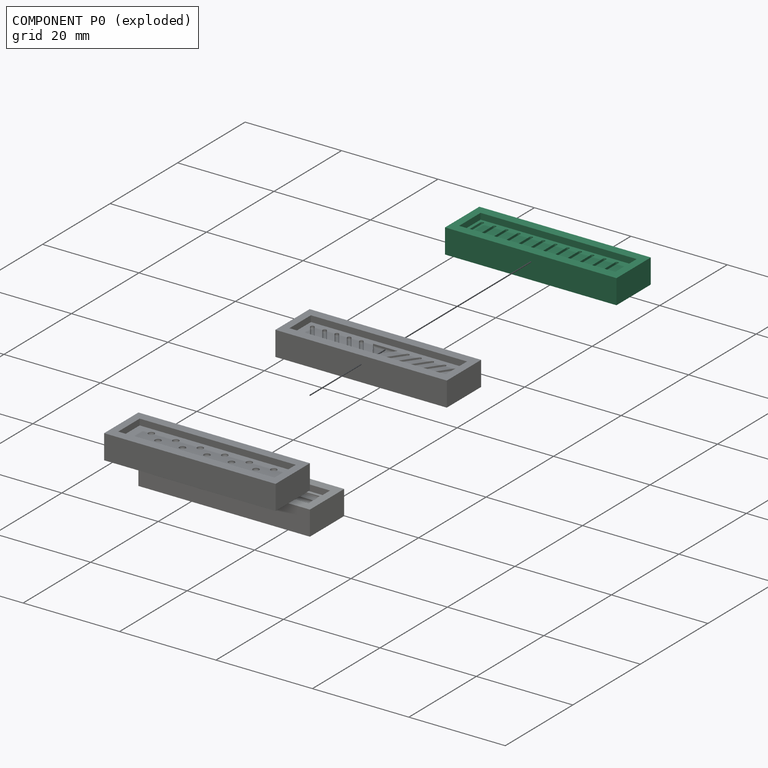
[diagram: component P0 — exploded]
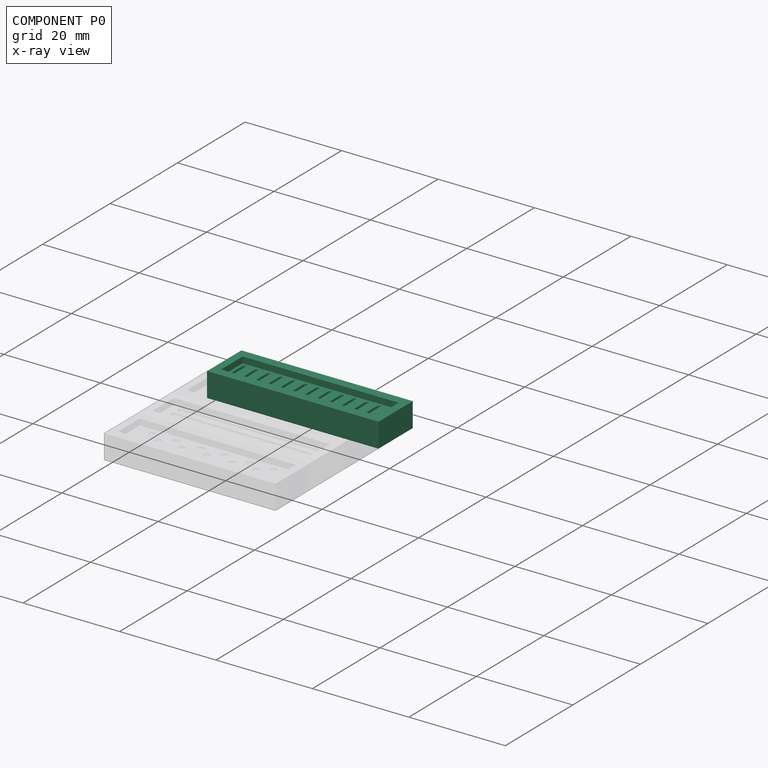
[diagram: component P0 — x-ray view]
COMPONENT P0 — recipe-attached (CADFS 00238308, mesh-verified: the recipe's output STEP matches this component's geometry to below the mesh-comparison resolution (tessellation chordal tolerance ~0.056 mm)).
Held by: PLANAR mate "Planar 7" to P1; PLANAR mate "Planar 8" to P1; PLANAR mate "Planar 9" to P1.
Construction recipe (FeatureScript — the CAD program that rebuilds this solid; sketch coordinates are in the units given by the * unit suffixes, e.g. mm):

FeatureScript 1511;
import(path : "onshape/std/geometry.fs", version : "1511.0");
import(path : "onshape/std/common.fs", version : "1511.0");
const mm = millimeter;
const VERTEX = EntityType.VERTEX;
const EDGE = EntityType.EDGE;
const FACE = EntityType.FACE;
const BODY = EntityType.BODY;
function v(x, y){return vector(x, y);}
function OD(order){return orderDisambiguation(order);}
function OSD(set){return originalSetDisambiguation(set);}
function TD(topology){return topologyDisambiguation(topology);}
function TDD(query){return trueDependencyDisambiguation(query);}
function sQuery(a, b, c) {return sketchEntityQuery(a, b, c);}

annotation { "Feature Type Name" : "Feature", "Feature Type Description" : "" }
export const myFeature = defineFeature(function(context is Context, id is Id, definition is map)
    precondition{}
    {
        {
            var Q0;
            Q0=qCreatedBy(makeId("Top.planeOp"),FACE);
            var sketch = newSketch(context, id + "F0", { "sketchPlane" : qUnion([Q0])});
            skLineSegment(sketch, "E0.bottom", {"start": v(17.78, -5.08) * mm, "end": v(-17.78, -5.08) * mm});
            skLineSegment(sketch, "E0.top", {"start": v(17.78, 5.08) * mm, "end": v(-17.78, 5.08) * mm});
            skLineSegment(sketch, "E0.left", {"start": v(17.78, -5.08) * mm, "end": v(17.78, 5.08) * mm});
            skLineSegment(sketch, "E0.right", {"start": v(-17.78, -5.08) * mm, "end": v(-17.78, 5.08) * mm});
            skPoint(sketch, "E0.middle", {"position": v(0, 0) * mm});
            skSolve(sketch);
        }
        {
            var Q0;
            Q0=makeQuery(id+"F0.imprint","IMPRINT",FACE,{"disambiguationData":[TD([[makeQuery(id+"F0.imprint","IMPRINT",EDGE,{"derivedFrom":sQuery(id+"F0.wireOp",EDGE,"E0.bottom")}),-1.0]])]});
            extrude(context, id + "F1", {"entities" : qUnion([Q0]), "depth" : 5.08 * mm});
        }
        {
            var Q0;
            Q0=makeQuery(id+"F1.opExtrude","CAP_FACE",FACE,{"disambiguationData":[OSD([sQuery(id+"F0.wireOp",EDGE,"E0.bottom"),sQuery(id+"F0.wireOp",EDGE,"E0.top"),sQuery(id+"F0.wireOp",EDGE,"E0.left"),sQuery(id+"F0.wireOp",EDGE,"E0.right")])],"isStart":false});
            var sketch = newSketch(context, id + "F2", { "sketchPlane" : qUnion([Q0])});
            skLineSegment(sketch, "E1.bottom", {"start": v(16.2, -3.18) * mm, "end": v(-16.2, -3.18) * mm});
            skLineSegment(sketch, "E1.top", {"start": v(16.2, 3.18) * mm, "end": v(-16.2, 3.18) * mm});
            skLineSegment(sketch, "E1.left", {"start": v(16.2, -3.18) * mm, "end": v(16.2, 3.17) * mm});
            skLineSegment(sketch, "E1.right", {"start": v(-16.2, -3.18) * mm, "end": v(-16.2, 3.17) * mm});
            skPoint(sketch, "E1.middle", {"position": v(0, 0) * mm});
            skSolve(sketch);
        }
        {
            var Q0;
            Q0=qSketchRegion(id+"F2",true);
            extrude(context, id + "F3", {"entities" : qUnion([Q0]), "operationType" : NewBodyOperationType.REMOVE, "oppositeDirection" : true, "depth" : 1.27 * mm});
        }
        {
            var Q0;
            Q0=makeQuery(id+"F3.boolean.opBoolean","COPY",FACE,{"derivedFrom":makeQuery(id+"F3.opExtrude","CAP_FACE",FACE,{"disambiguationData":[OSD([sQuery(id+"F2.wireOp",EDGE,"E1.bottom"),sQuery(id+"F2.wireOp",EDGE,"E1.top"),sQuery(id+"F2.wireOp",EDGE,"E1.left"),sQuery(id+"F2.wireOp",EDGE,"E1.right")])],"isStart":false})});
            var sketch = newSketch(context, id + "F4", { "sketchPlane" : qUnion([Q0])});
            skLineSegment(sketch, "E2", {"start": v(0, 2.29) * mm, "end": v(0, -2.29) * mm});
            skArc(sketch, "E3.0.startCap", {"start": v(-0.32, 2.29) * mm, "mid": v(0, 2.6) * mm, "end": v(0.32, 2.29) * mm});
            skArc(sketch, "E3.0.endCap", {"start": v(0.32, -2.29) * mm, "mid": v(0, -2.6) * mm, "end": v(-0.32, -2.29) * mm});
            skLineSegment(sketch, "E3.0.left", {"start": v(0.32, 2.29) * mm, "end": v(0.32, -2.29) * mm});
            skLineSegment(sketch, "E3.0.right", {"start": v(-0.32, 2.29) * mm, "end": v(-0.32, -2.29) * mm});
            skArc(sketch, "E4.1.0.0", {"start": v(2.22, 2.29) * mm, "mid": v(2.54, 2.6) * mm, "end": v(2.86, 2.29) * mm});
            skArc(sketch, "E4.1.0.1", {"start": v(2.86, -2.29) * mm, "mid": v(2.54, -2.6) * mm, "end": v(2.22, -2.29) * mm});
            skLineSegment(sketch, "E4.1.0.2", {"start": v(2.86, 2.29) * mm, "end": v(2.86, -2.29) * mm});
            skLineSegment(sketch, "E4.1.0.3", {"start": v(2.22, 2.29) * mm, "end": v(2.22, -2.29) * mm});
            skLineSegment(sketch, "E4.1.0.4", {"start": v(2.54, 2.29) * mm, "end": v(2.54, -2.29) * mm});
            skArc(sketch, "E4.2.0.0", {"start": v(4.76, 2.29) * mm, "mid": v(5.08, 2.6) * mm, "end": v(5.4, 2.29) * mm});
            skArc(sketch, "E4.2.0.1", {"start": v(5.4, -2.29) * mm, "mid": v(5.08, -2.6) * mm, "end": v(4.76, -2.29) * mm});
            skLineSegment(sketch, "E4.2.0.2", {"start": v(5.4, 2.29) * mm, "end": v(5.4, -2.29) * mm});
            skLineSegment(sketch, "E4.2.0.3", {"start": v(4.76, 2.29) * mm, "end": v(4.76, -2.29) * mm});
            skLineSegment(sketch, "E4.2.0.4", {"start": v(5.08, 2.29) * mm, "end": v(5.08, -2.29) * mm});
            skArc(sketch, "E4.3.0.0", {"start": v(7.3, 2.29) * mm, "mid": v(7.62, 2.6) * mm, "end": v(7.94, 2.29) * mm});
            skArc(sketch, "E4.3.0.1", {"start": v(7.94, -2.29) * mm, "mid": v(7.62, -2.6) * mm, "end": v(7.3, -2.29) * mm});
            skLineSegment(sketch, "E4.3.0.2", {"start": v(7.94, 2.29) * mm, "end": v(7.94, -2.29) * mm});
            skLineSegment(sketch, "E4.3.0.3", {"start": v(7.3, 2.29) * mm, "end": v(7.3, -2.29) * mm});
            skLineSegment(sketch, "E4.3.0.4", {"start": v(7.62, 2.29) * mm, "end": v(7.62, -2.29) * mm});
            skArc(sketch, "E4.4.0.0", {"start": v(9.84, 2.29) * mm, "mid": v(10.16, 2.6) * mm, "end": v(10.48, 2.29) * mm});
            skArc(sketch, "E4.4.0.1", {"start": v(10.48, -2.29) * mm, "mid": v(10.16, -2.6) * mm, "end": v(9.84, -2.29) * mm});
            skLineSegment(sketch, "E4.4.0.2", {"start": v(10.48, 2.29) * mm, "end": v(10.48, -2.29) * mm});
            skLineSegment(sketch, "E4.4.0.3", {"start": v(9.84, 2.29) * mm, "end": v(9.84, -2.29) * mm});
            skLineSegment(sketch, "E4.4.0.4", {"start": v(10.16, 2.29) * mm, "end": v(10.16, -2.29) * mm});
            skLineSegment(sketch, "E4.direction1", {"start": v(-0.32, -2.29) * mm, "end": v(2.22, -2.29) * mm, "construction": true});
            skLineSegment(sketch, "E5.1.0.0", {"start": v(-2.86, 2.29) * mm, "end": v(-2.86, -2.29) * mm});
            skLineSegment(sketch, "E5.1.0.1", {"start": v(-2.22, 2.29) * mm, "end": v(-2.22, -2.29) * mm});
            skArc(sketch, "E5.1.0.2", {"start": v(-2.22, -2.29) * mm, "mid": v(-2.54, -2.6) * mm, "end": v(-2.86, -2.29) * mm});
            skArc(sketch, "E5.1.0.3", {"start": v(-2.86, 2.29) * mm, "mid": v(-2.54, 2.6) * mm, "end": v(-2.22, 2.29) * mm});
            skLineSegment(sketch, "E5.1.0.4", {"start": v(-2.54, 2.29) * mm, "end": v(-2.54, -2.29) * mm});
            skLineSegment(sketch, "E5.2.0.0", {"start": v(-5.4, 2.29) * mm, "end": v(-5.4, -2.29) * mm});
            skLineSegment(sketch, "E5.2.0.1", {"start": v(-4.76, 2.29) * mm, "end": v(-4.76, -2.29) * mm});
            skArc(sketch, "E5.2.0.2", {"start": v(-4.76, -2.29) * mm, "mid": v(-5.08, -2.6) * mm, "end": v(-5.4, -2.29) * mm});
            skArc(sketch, "E5.2.0.3", {"start": v(-5.4, 2.29) * mm, "mid": v(-5.08, 2.6) * mm, "end": v(-4.76, 2.29) * mm});
            skLineSegment(sketch, "E5.2.0.4", {"start": v(-5.08, 2.29) * mm, "end": v(-5.08, -2.29) * mm});
            skLineSegment(sketch, "E5.3.0.0", {"start": v(-7.94, 2.29) * mm, "end": v(-7.94, -2.29) * mm});
            skLineSegment(sketch, "E5.3.0.1", {"start": v(-7.3, 2.29) * mm, "end": v(-7.3, -2.29) * mm});
            skArc(sketch, "E5.3.0.2", {"start": v(-7.3, -2.29) * mm, "mid": v(-7.62, -2.6) * mm, "end": v(-7.94, -2.29) * mm});
            skArc(sketch, "E5.3.0.3", {"start": v(-7.94, 2.29) * mm, "mid": v(-7.62, 2.6) * mm, "end": v(-7.3, 2.29) * mm});
            skLineSegment(sketch, "E5.3.0.4", {"start": v(-7.62, 2.29) * mm, "end": v(-7.62, -2.29) * mm});
            skLineSegment(sketch, "E5.4.0.0", {"start": v(-10.48, 2.29) * mm, "end": v(-10.48, -2.29) * mm});
            skLineSegment(sketch, "E5.4.0.1", {"start": v(-9.84, 2.29) * mm, "end": v(-9.84, -2.29) * mm});
            skArc(sketch, "E5.4.0.2", {"start": v(-9.84, -2.29) * mm, "mid": v(-10.16, -2.6) * mm, "end": v(-10.48, -2.29) * mm});
            skArc(sketch, "E5.4.0.3", {"start": v(-10.48, 2.29) * mm, "mid": v(-10.16, 2.6) * mm, "end": v(-9.84, 2.29) * mm});
            skLineSegment(sketch, "E5.4.0.4", {"start": v(-10.16, 2.29) * mm, "end": v(-10.16, -2.29) * mm});
            skLineSegment(sketch, "E5.direction1", {"start": v(-0.32, -2.29) * mm, "end": v(-2.86, -2.29) * mm, "construction": true});
            skArc(sketch, "E6.0.5.0", {"start": v(12.38, 2.29) * mm, "mid": v(12.7, 2.6) * mm, "end": v(13.02, 2.29) * mm});
            skArc(sketch, "E6.4.5.0", {"start": v(13.02, -2.29) * mm, "mid": v(12.7, -2.6) * mm, "end": v(12.38, -2.29) * mm});
            skLineSegment(sketch, "E6.8.5.0", {"start": v(13.02, 2.29) * mm, "end": v(13.02, -2.29) * mm});
            skLineSegment(sketch, "E6.11.5.0", {"start": v(12.38, 2.29) * mm, "end": v(12.38, -2.29) * mm});
            skLineSegment(sketch, "E6.14.5.0", {"start": v(12.7, 2.29) * mm, "end": v(12.7, -2.29) * mm});
            skArc(sketch, "E6.0.6.0", {"start": v(14.92, 2.29) * mm, "mid": v(15.24, 2.6) * mm, "end": v(15.56, 2.29) * mm});
            skArc(sketch, "E6.4.6.0", {"start": v(15.56, -2.29) * mm, "mid": v(15.24, -2.6) * mm, "end": v(14.92, -2.29) * mm});
            skLineSegment(sketch, "E6.8.6.0", {"start": v(15.56, 2.29) * mm, "end": v(15.56, -2.29) * mm});
            skLineSegment(sketch, "E6.11.6.0", {"start": v(14.92, 2.29) * mm, "end": v(14.92, -2.29) * mm});
            skLineSegment(sketch, "E6.14.6.0", {"start": v(15.24, 2.29) * mm, "end": v(15.24, -2.29) * mm});
            skLineSegment(sketch, "E7.0.5.0", {"start": v(-13.02, 2.29) * mm, "end": v(-13.02, -2.29) * mm});
            skLineSegment(sketch, "E7.3.5.0", {"start": v(-12.38, 2.29) * mm, "end": v(-12.38, -2.29) * mm});
            skArc(sketch, "E7.6.5.0", {"start": v(-12.38, -2.29) * mm, "mid": v(-12.7, -2.6) * mm, "end": v(-13.02, -2.29) * mm});
            skArc(sketch, "E7.10.5.0", {"start": v(-13.02, 2.29) * mm, "mid": v(-12.7, 2.6) * mm, "end": v(-12.38, 2.29) * mm});
            skLineSegment(sketch, "E7.14.5.0", {"start": v(-12.7, 2.29) * mm, "end": v(-12.7, -2.29) * mm});
            skLineSegment(sketch, "E7.0.6.0", {"start": v(-15.56, 2.29) * mm, "end": v(-15.56, -2.29) * mm});
            skLineSegment(sketch, "E7.3.6.0", {"start": v(-14.92, 2.29) * mm, "end": v(-14.92, -2.29) * mm});
            skArc(sketch, "E7.6.6.0", {"start": v(-14.92, -2.29) * mm, "mid": v(-15.24, -2.6) * mm, "end": v(-15.56, -2.29) * mm});
            skArc(sketch, "E7.10.6.0", {"start": v(-15.56, 2.29) * mm, "mid": v(-15.24, 2.6) * mm, "end": v(-14.92, 2.29) * mm});
            skLineSegment(sketch, "E7.14.6.0", {"start": v(-15.24, 2.29) * mm, "end": v(-15.24, -2.29) * mm});
            skSolve(sketch);
        }
        {
            var Q0;
            Q0=qSketchRegion(id+"F4",true);
            extrude(context, id + "F5", {"entities" : qUnion([Q0]), "operationType" : NewBodyOperationType.REMOVE, "oppositeDirection" : true, "depth" : 0.64 * mm});
        }
        {
            var Q0;
            Q0=makeQuery(id+"F5.boolean.opBoolean","COPY",EDGE,{"derivedFrom":makeQuery(id+"F5.opExtrude","CAP_EDGE",EDGE,{"disambiguationData":[OSD([sQuery(id+"F4.wireOp",EDGE,"E5.4.0.0")])],"isStart":false})});
            var Q1;
            Q1=makeQuery(id+"F5.boolean.opBoolean","COPY",EDGE,{"derivedFrom":makeQuery(id+"F5.opExtrude","CAP_EDGE",EDGE,{"disambiguationData":[OSD([sQuery(id+"F4.wireOp",EDGE,"E5.3.0.0")])],"isStart":false})});
            var Q2;
            Q2=makeQuery(id+"F5.boolean.opBoolean","COPY",EDGE,{"derivedFrom":makeQuery(id+"F5.opExtrude","CAP_EDGE",EDGE,{"disambiguationData":[OSD([sQuery(id+"F4.wireOp",EDGE,"E5.2.0.0")])],"isStart":false})});
            var Q3;
            Q3=makeQuery(id+"F5.boolean.opBoolean","COPY",EDGE,{"derivedFrom":makeQuery(id+"F5.opExtrude","CAP_EDGE",EDGE,{"disambiguationData":[OSD([sQuery(id+"F4.wireOp",EDGE,"E5.1.0.0")])],"isStart":false})});
            var Q4;
            Q4=makeQuery(id+"F5.boolean.opBoolean","COPY",EDGE,{"derivedFrom":makeQuery(id+"F5.opExtrude","CAP_EDGE",EDGE,{"disambiguationData":[OSD([sQuery(id+"F4.wireOp",EDGE,"E3.0.right")])],"isStart":false})});
            var Q5;
            Q5=makeQuery(id+"F5.boolean.opBoolean","COPY",EDGE,{"derivedFrom":makeQuery(id+"F5.opExtrude","CAP_EDGE",EDGE,{"disambiguationData":[OSD([sQuery(id+"F4.wireOp",EDGE,"E4.1.0.3")])],"isStart":false})});
            var Q6;
            Q6=makeQuery(id+"F5.boolean.opBoolean","COPY",EDGE,{"derivedFrom":makeQuery(id+"F5.opExtrude","CAP_EDGE",EDGE,{"disambiguationData":[OSD([sQuery(id+"F4.wireOp",EDGE,"E4.2.0.3")])],"isStart":false})});
            var Q7;
            Q7=makeQuery(id+"F5.boolean.opBoolean","COPY",EDGE,{"derivedFrom":makeQuery(id+"F5.opExtrude","CAP_EDGE",EDGE,{"disambiguationData":[OSD([sQuery(id+"F4.wireOp",EDGE,"E4.3.0.3")])],"isStart":false})});
            var Q8;
            Q8=makeQuery(id+"F5.boolean.opBoolean","COPY",EDGE,{"derivedFrom":makeQuery(id+"F5.opExtrude","CAP_EDGE",EDGE,{"disambiguationData":[OSD([sQuery(id+"F4.wireOp",EDGE,"E4.4.0.3")])],"isStart":false})});
            var Q9;
            Q9=makeQuery(id+"F5.boolean.opBoolean","COPY",EDGE,{"derivedFrom":makeQuery(id+"F5.opExtrude","CAP_EDGE",EDGE,{"disambiguationData":[OSD([sQuery(id+"F4.wireOp",EDGE,"E7.0.6.0")])],"isStart":false})});
            var Q10;
            Q10=makeQuery(id+"F5.boolean.opBoolean","COPY",EDGE,{"derivedFrom":makeQuery(id+"F5.opExtrude","CAP_EDGE",EDGE,{"disambiguationData":[OSD([sQuery(id+"F4.wireOp",EDGE,"E7.0.5.0")])],"isStart":false})});
            var Q11;
            Q11=makeQuery(id+"F5.boolean.opBoolean","COPY",EDGE,{"derivedFrom":makeQuery(id+"F5.opExtrude","CAP_EDGE",EDGE,{"disambiguationData":[OSD([sQuery(id+"F4.wireOp",EDGE,"E6.11.5.0")])],"isStart":false})});
            var Q12;
            Q12=makeQuery(id+"F5.boolean.opBoolean","COPY",EDGE,{"derivedFrom":makeQuery(id+"F5.opExtrude","CAP_EDGE",EDGE,{"disambiguationData":[OSD([sQuery(id+"F4.wireOp",EDGE,"E6.11.6.0")])],"isStart":false})});
            fillet(context, id + "F6", {"entities" : qUnion([Q0, Q1, Q2, Q3, Q4, Q5, Q6, Q7, Q8, Q9, Q10, Q11, Q12]), "radius" : 0.25 * mm, "tangentPropagation" : true, "allowEdgeOverflow" : false});
        }
    });
PROVENANCE & LICENSES
Assembly (occurrences, transforms, mates, per-part STEP geometry): AutoMate dataset, Zenodo record 7776208, CC0.
Construction recipes: CADFS (HuggingFace VladPyatov/CADFS, CC-BY-4.0, layered over the ABC dataset), FeatureScript reconstruction programs keyed by ABC model id.
Join: ABC meta listings map ABC model id -> Onshape documentId; within a shared document, parts are matched by geometric signature (bounding-box dims + volume at 0.1% relative tolerance, exact B-rep face/solid counts).
Verification: 4 of this assembly's 4 components carry a recipe attachment, and every attachment is mesh-verified: the CADFS STEP and the AutoMate member STEP were compared as meshes in their shared local frame (symmetric sampled-point-to-mesh distance); worst across the 4 attachments: below the mesh-comparison resolution (tessellation chordal tolerance ~0.056 mm) on a 37 mm part.
Renders: orthographic iso camera (az 35 / el 25); the floor grid conveys scale (grid pitch printed in each image; no ruler). In the exploded view each component is displaced by its stored offset vector: the offsets alone carry the explosion direction (mate normal/axis signs are not orientation cues and do not encode it), and separation distances are assigned per mate-chain, not proportionally to assembly-order depth.
